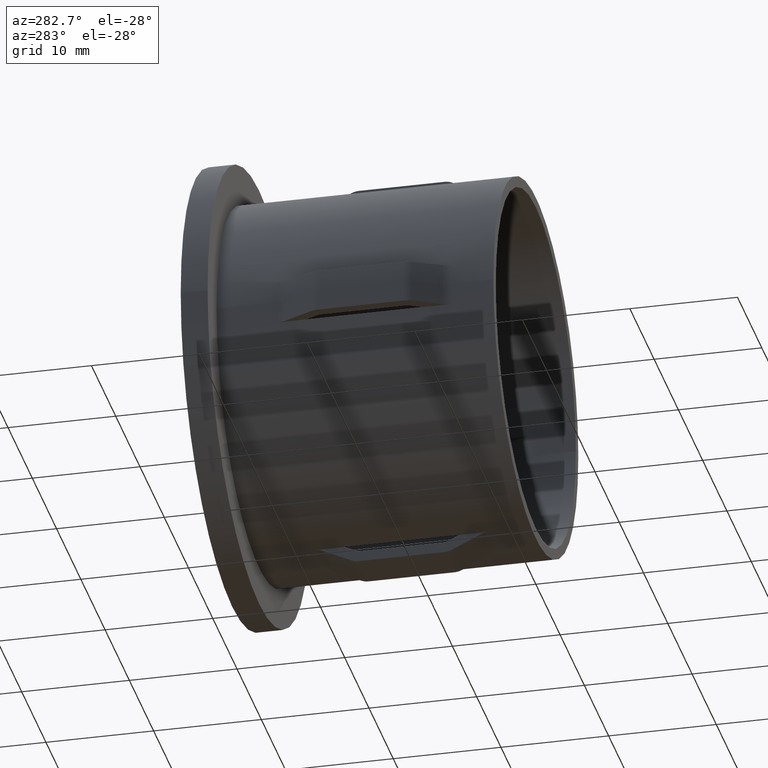
[diagram: clean part render]
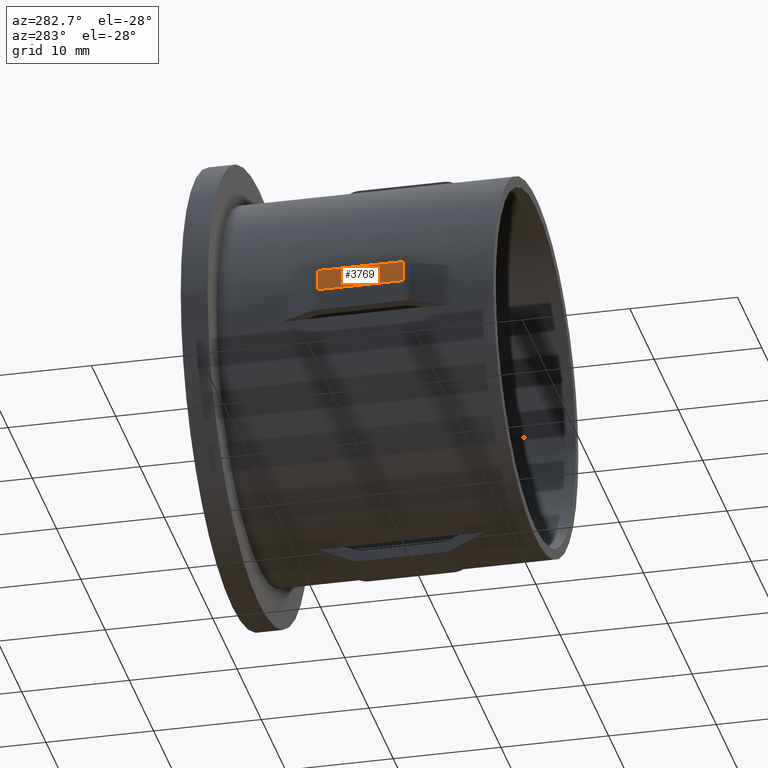
[diagram: same view with one face highlighted and labeled with its STEP entity id]
A machine part, auxiliary view. The second image highlights one B-rep face of the part: STEP entity #3769.
In plain terms, the highlighted cylindrical surface (partial cylindrical patch) has radius 19.1 mm, axis along (-0, 1, -0).
Its self-contained STEP definition (entity closure, byte-faithful):
#46 = CARTESIAN_POINT ( 'NONE',  ( -18.99499934193207200, 7.999999999999992900, 2.000000000000000000 ) ) ;
#259 = LINE ( 'NONE', #11729, #7360 ) ;
#410 = DIRECTION ( 'NONE',  ( -1.714505518806297100E-016, 1.000000000000000000, -0.0000000000000000000 ) ) ;
#425 = VECTOR ( 'NONE', #410, 1000.000000000000000 ) ;
#1018 = CARTESIAN_POINT ( 'NONE',  ( 1.846767373114211700E-015, 15.99999999999999600, 0.0000000000000000000 ) ) ;
#1086 = AXIS2_PLACEMENT_3D ( 'NONE', #1658, #7809, #7850 ) ;
#1169 = AXIS2_PLACEMENT_3D ( 'NONE', #1018, #6185, #13309 ) ;
#1592 = VERTEX_POINT ( 'NONE', #10018 ) ;
#1658 = CARTESIAN_POINT ( 'NONE',  ( 3.218371788159250600E-015, 7.999999999999992900, 0.0000000000000000000 ) ) ;
#1749 = VERTEX_POINT ( 'NONE', #12827 ) ;
#3548 = EDGE_CURVE ( 'NONE', #1592, #1749, #10780, .T. ) ;
#3726 = CIRCLE ( 'NONE', #1086, 19.09999999999999800 ) ;
#3769 = ADVANCED_FACE ( 'NONE', ( #9165 ), #12086, .T. ) ;
#3915 = DIRECTION ( 'NONE',  ( -1.714505518806297100E-016, 1.000000000000000000, -0.0000000000000000000 ) ) ;
#3948 = EDGE_CURVE ( 'NONE', #1749, #4185, #259, .T. ) ;
#4122 = ORIENTED_EDGE ( 'NONE', *, *, #3548, .F. ) ;
#4185 = VERTEX_POINT ( 'NONE', #46 ) ;
#4420 = EDGE_CURVE ( 'NONE', #11621, #1592, #5949, .T. ) ;
#5180 = AXIS2_PLACEMENT_3D ( 'NONE', #10080, #3915, #11119 ) ;
#5949 = LINE ( 'NONE', #10808, #425 ) ;
#6185 = DIRECTION ( 'NONE',  ( -1.714505518806297100E-016, 1.000000000000000000, -0.0000000000000000000 ) ) ;
#6855 = ORIENTED_EDGE ( 'NONE', *, *, #4420, .F. ) ;
#7360 = VECTOR ( 'NONE', #10023, 1000.000000000000000 ) ;
#7809 = DIRECTION ( 'NONE',  ( -1.714505518806297100E-016, 1.000000000000000000, -0.0000000000000000000 ) ) ;
#7850 = DIRECTION ( 'NONE',  ( -1.000000000000000000, -1.816464372750583600E-016, 0.0000000000000000000 ) ) ;
#8863 = CARTESIAN_POINT ( 'NONE',  ( -19.09999999999999400, 7.999999999999989300, 0.0000000000000000000 ) ) ;
#9165 = FACE_OUTER_BOUND ( 'NONE', #10286, .T. ) ;
#9188 = ORIENTED_EDGE ( 'NONE', *, *, #13369, .T. ) ;
#10018 = CARTESIAN_POINT ( 'NONE',  ( -19.09999999999999800, 15.99999999999999300, 0.0000000000000000000 ) ) ;
#10023 = DIRECTION ( 'NONE',  ( -0.0000000000000000000, -1.000000000000000000, -0.0000000000000000000 ) ) ;
#10080 = CARTESIAN_POINT ( 'NONE',  ( -2.449293598294708900E-016, 28.19999999999999900, 0.0000000000000000000 ) ) ;
#10286 = EDGE_LOOP ( 'NONE', ( #6855, #9188, #13243, #4122 ) ) ;
#10780 = CIRCLE ( 'NONE', #1169, 19.10000000000000100 ) ;
#10808 = CARTESIAN_POINT ( 'NONE',  ( -19.09999999999999800, 28.19999999999999600, 0.0000000000000000000 ) ) ;
#11119 = DIRECTION ( 'NONE',  ( -1.000000000000000000, -1.816464372750583600E-016, 0.0000000000000000000 ) ) ;
#11621 = VERTEX_POINT ( 'NONE', #8863 ) ;
#11729 = CARTESIAN_POINT ( 'NONE',  ( -18.99499934193207200, 20.00000000000000000, 2.000000000000000000 ) ) ;
#12086 = CYLINDRICAL_SURFACE ( 'NONE', #5180, 19.09999999999999800 ) ;
#12827 = CARTESIAN_POINT ( 'NONE',  ( -18.99499934193207200, 15.99999999999999300, 2.000000000000000000 ) ) ;
#13243 = ORIENTED_EDGE ( 'NONE', *, *, #3948, .F. ) ;
#13309 = DIRECTION ( 'NONE',  ( -1.000000000000000000, -1.816464372750583100E-016, 0.0000000000000000000 ) ) ;
#13369 = EDGE_CURVE ( 'NONE', #11621, #4185, #3726, .T. ) ;